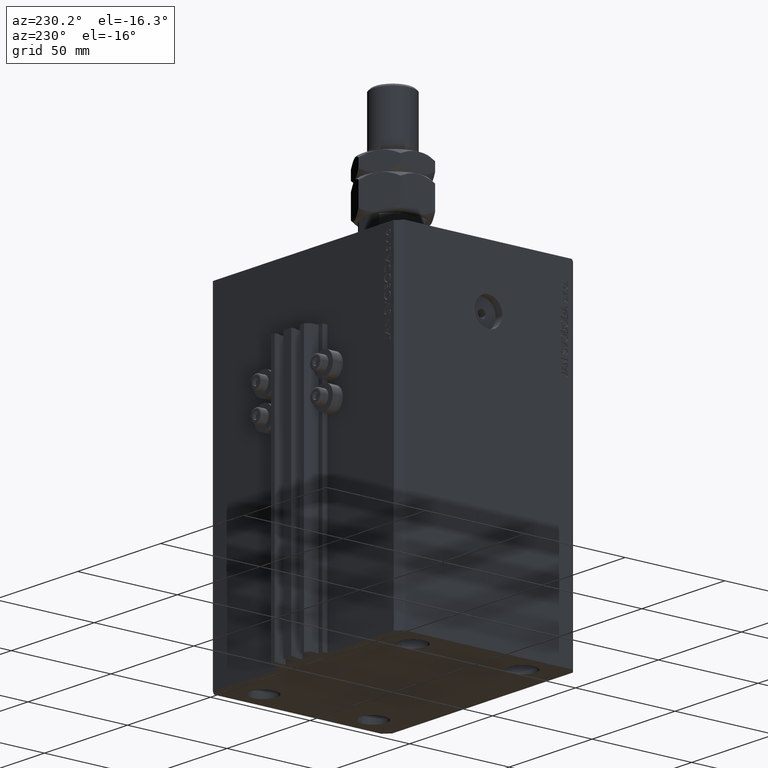
[diagram: clean part render]
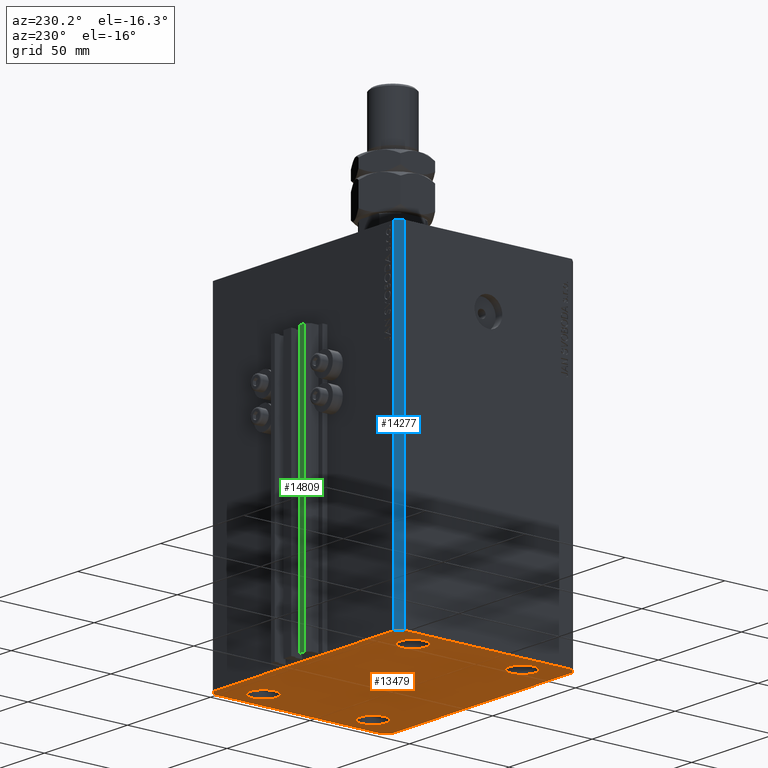
[diagram: same view with three faces highlighted in distinct colors, each labeled with its STEP entity id]
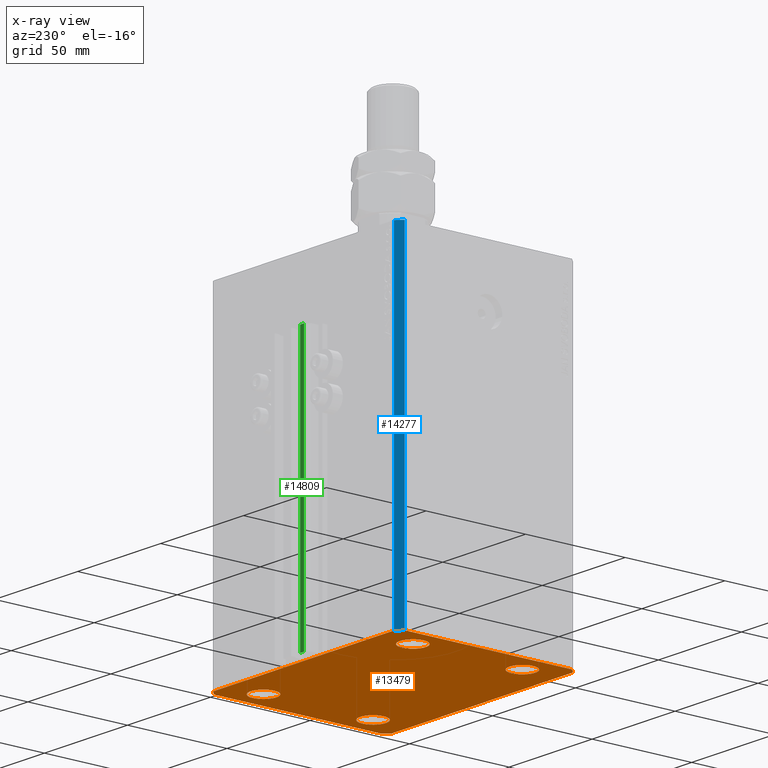
[diagram: x-ray of the same camera — body ghosted, the three highlighted faces saturated]
A machine part, auxiliary view with three faces highlighted in distinct colors.
The next image is the same camera in x-ray (body ghosted, the three faces saturated) — at least one of them is partly hidden behind the body in this view.
Their STEP definitions:

[orange] entity #13479 — the highlighted planar face has unit normal (0, 0, 1).
#1111 = VERTEX_POINT ( 'NONE', #4283 ) ;
#1266 = CARTESIAN_POINT ( 'NONE',  ( 51.50000000000000000, 27.49999999999999289, -165.0000000000000000 ) ) ;
#1566 = DIRECTION ( 'NONE',  ( -0.000000000000000000, -0.000000000000000000, -1.000000000000000000 ) ) ;
#1625 = AXIS2_PLACEMENT_3D ( 'NONE', #45103, #37925, #38415 ) ;
#1873 = DIRECTION ( 'NONE',  ( -0.7071067811865483499, -0.7071067811865466846, 0.000000000000000000 ) ) ;
#2516 = FACE_BOUND ( 'NONE', #38768, .T. ) ;
#3083 = CARTESIAN_POINT ( 'NONE',  ( -45.00000000000000000, 27.49999999999999645, -165.0000000000000000 ) ) ;
#3249 = CARTESIAN_POINT ( 'NONE',  ( 54.50000000000059686, 45.00000000000002842, -165.0000000000000000 ) ) ;
#3682 = EDGE_CURVE ( 'NONE', #43658, #37473, #39765, .T. ) ;
#3860 = ORIENTED_EDGE ( 'NONE', *, *, #47393, .F. ) ;
#4283 = CARTESIAN_POINT ( 'NONE',  ( -54.50000000000000711, -45.00000000000000000, -165.0000000000000000 ) ) ;
#4331 = EDGE_CURVE ( 'NONE', #35072, #5587, #46576, .T. ) ;
#4952 = LINE ( 'NONE', #20014, #23770 ) ;
#5294 = DIRECTION ( 'NONE',  ( -0.000000000000000000, -0.000000000000000000, -1.000000000000000000 ) ) ;
#5587 = VERTEX_POINT ( 'NONE', #43053 ) ;
#5863 = DIRECTION ( 'NONE',  ( -0.000000000000000000, -0.000000000000000000, -1.000000000000000000 ) ) ;
#6213 = CARTESIAN_POINT ( 'NONE',  ( -45.00000000000000000, 27.49999999999999645, -165.0000000000000000 ) ) ;
#6342 = VECTOR ( 'NONE', #1873, 1000.000000000000000 ) ;
#6441 = VECTOR ( 'NONE', #34581, 1000.000000000000000 ) ;
#6456 = FACE_BOUND ( 'NONE', #38337, .T. ) ;
#6558 = ORIENTED_EDGE ( 'NONE', *, *, #16992, .F. ) ;
#6874 = DIRECTION ( 'NONE',  ( 1.000000000000000000, 0.000000000000000000, 0.000000000000000000 ) ) ;
#6934 = CARTESIAN_POINT ( 'NONE',  ( 51.49999999999998579, -27.50000000000000355, -165.0000000000000000 ) ) ;
#7063 = ORIENTED_EDGE ( 'NONE', *, *, #12465, .F. ) ;
#7170 = DIRECTION ( 'NONE',  ( 0.000000000000000000, 0.000000000000000000, 1.000000000000000000 ) ) ;
#7235 = DIRECTION ( 'NONE',  ( -0.000000000000000000, -0.000000000000000000, -1.000000000000000000 ) ) ;
#7317 = VERTEX_POINT ( 'NONE', #6934 ) ;
#7358 = DIRECTION ( 'NONE',  ( -0.000000000000000000, -0.000000000000000000, -1.000000000000000000 ) ) ;
#7641 = DIRECTION ( 'NONE',  ( 1.000000000000000000, 0.000000000000000000, 0.000000000000000000 ) ) ;
#7715 = CARTESIAN_POINT ( 'NONE',  ( -44.99999999999998579, -27.50000000000000355, -165.0000000000000000 ) ) ;
#8208 = EDGE_LOOP ( 'NONE', ( #30553, #3860 ) ) ;
#8223 = DIRECTION ( 'NONE',  ( 1.000000000000000000, 0.000000000000000000, 0.000000000000000000 ) ) ;
#8304 = AXIS2_PLACEMENT_3D ( 'NONE', #7715, #7235, #37846 ) ;
#8418 = AXIS2_PLACEMENT_3D ( 'NONE', #22182, #7358, #6874 ) ;
#9101 = CIRCLE ( 'NONE', #23257, 6.499999999999999112 ) ;
#9285 = DIRECTION ( 'NONE',  ( 0.7071067811865483499, 0.7071067811865466846, 0.000000000000000000 ) ) ;
#9616 = EDGE_CURVE ( 'NONE', #38233, #7317, #48153, .T. ) ;
#9736 = EDGE_CURVE ( 'NONE', #46957, #32797, #35437, .T. ) ;
#10232 = VECTOR ( 'NONE', #9285, 1000.000000000000000 ) ;
#10267 = VERTEX_POINT ( 'NONE', #1266 ) ;
#11126 = VECTOR ( 'NONE', #47943, 1000.000000000000000 ) ;
#11453 = VECTOR ( 'NONE', #36778, 1000.000000000000000 ) ;
#11755 = ORIENTED_EDGE ( 'NONE', *, *, #29634, .F. ) ;
#12198 = VERTEX_POINT ( 'NONE', #28968 ) ;
#12239 = CARTESIAN_POINT ( 'NONE',  ( 57.50000000000055422, 41.99999999999997868, -165.0000000000000000 ) ) ;
#12465 = EDGE_CURVE ( 'NONE', #1111, #35072, #29630, .T. ) ;
#13479 = ADVANCED_FACE ( 'NONE', ( #25472, #29639, #6456, #2516, #44722 ), #22240, .F. ) ;
#13512 = ORIENTED_EDGE ( 'NONE', *, *, #38604, .F. ) ;
#14609 = DIRECTION ( 'NONE',  ( -1.000000000000000000, -2.546383084002638829E-16, 0.000000000000000000 ) ) ;
#16146 = ORIENTED_EDGE ( 'NONE', *, *, #27701, .F. ) ;
#16443 = ORIENTED_EDGE ( 'NONE', *, *, #40694, .F. ) ;
#16690 = ORIENTED_EDGE ( 'NONE', *, *, #35925, .F. ) ;
#16864 = AXIS2_PLACEMENT_3D ( 'NONE', #35375, #1566, #8223 ) ;
#16892 = DIRECTION ( 'NONE',  ( 1.000000000000000000, 0.000000000000000000, 0.000000000000000000 ) ) ;
#16992 = EDGE_CURVE ( 'NONE', #32797, #26281, #40735, .T. ) ;
#17227 = EDGE_CURVE ( 'NONE', #29457, #10267, #9101, .T. ) ;
#18070 = CARTESIAN_POINT ( 'NONE',  ( 38.49999999999998579, -27.50000000000000355, -165.0000000000000000 ) ) ;
#18091 = VERTEX_POINT ( 'NONE', #34441 ) ;
#18400 = EDGE_CURVE ( 'NONE', #12198, #18091, #21765, .T. ) ;
#18490 = CARTESIAN_POINT ( 'NONE',  ( -57.49999999999998579, 42.00000000000000711, -165.0000000000000000 ) ) ;
#19525 = LINE ( 'NONE', #30873, #6441 ) ;
#19552 = CARTESIAN_POINT ( 'NONE',  ( -54.49999999999999289, 45.00000000000000000, -165.0000000000000000 ) ) ;
#20014 = CARTESIAN_POINT ( 'NONE',  ( -57.50000000000000711, -42.00000000000000711, -165.0000000000000000 ) ) ;
#20397 = CARTESIAN_POINT ( 'NONE',  ( 54.50000000000000711, -44.99999999999998579, -165.0000000000000000 ) ) ;
#21493 = CIRCLE ( 'NONE', #44369, 6.499999999999999112 ) ;
#21683 = ORIENTED_EDGE ( 'NONE', *, *, #9736, .F. ) ;
#21765 = CIRCLE ( 'NONE', #8304, 6.499999999999999112 ) ;
#22182 = CARTESIAN_POINT ( 'NONE',  ( -44.99999999999998579, -27.50000000000000355, -165.0000000000000000 ) ) ;
#22240 = PLANE ( 'NONE',  #32488 ) ;
#22391 = CIRCLE ( 'NONE', #28698, 6.499999999999999112 ) ;
#22395 = ORIENTED_EDGE ( 'NONE', *, *, #9616, .F. ) ;
#23257 = AXIS2_PLACEMENT_3D ( 'NONE', #31710, #5294, #16892 ) ;
#23770 = VECTOR ( 'NONE', #35069, 1000.000000000000114 ) ;
#24175 = ORIENTED_EDGE ( 'NONE', *, *, #38728, .F. ) ;
#24868 = CARTESIAN_POINT ( 'NONE',  ( -51.50000000000000000, 27.49999999999999645, -165.0000000000000000 ) ) ;
#25179 = VECTOR ( 'NONE', #27660, 1000.000000000000000 ) ;
#25472 = FACE_BOUND ( 'NONE', #8208, .T. ) ;
#25699 = CARTESIAN_POINT ( 'NONE',  ( 45.00000000000000000, 27.49999999999999289, -165.0000000000000000 ) ) ;
#26281 = VERTEX_POINT ( 'NONE', #38628 ) ;
#27075 = VERTEX_POINT ( 'NONE', #24868 ) ;
#27660 = DIRECTION ( 'NONE',  ( -0.7071067811865369146, 0.7071067811865581199, 0.000000000000000000 ) ) ;
#27699 = ORIENTED_EDGE ( 'NONE', *, *, #30226, .F. ) ;
#27701 = EDGE_CURVE ( 'NONE', #37473, #46957, #37796, .T. ) ;
#28597 = ORIENTED_EDGE ( 'NONE', *, *, #17227, .F. ) ;
#28698 = AXIS2_PLACEMENT_3D ( 'NONE', #25699, #41476, #7641 ) ;
#28968 = CARTESIAN_POINT ( 'NONE',  ( -38.49999999999998579, -27.50000000000000355, -165.0000000000000000 ) ) ;
#29161 = DIRECTION ( 'NONE',  ( -0.000000000000000000, -0.000000000000000000, -1.000000000000000000 ) ) ;
#29457 = VERTEX_POINT ( 'NONE', #32650 ) ;
#29628 = CARTESIAN_POINT ( 'NONE',  ( -57.49999999999998579, 42.00000000000000711, -165.0000000000000000 ) ) ;
#29630 = LINE ( 'NONE', #36812, #11126 ) ;
#29634 = EDGE_CURVE ( 'NONE', #26281, #1111, #4952, .T. ) ;
#29639 = FACE_BOUND ( 'NONE', #46018, .T. ) ;
#30226 = EDGE_CURVE ( 'NONE', #5587, #43658, #19525, .T. ) ;
#30553 = ORIENTED_EDGE ( 'NONE', *, *, #18400, .F. ) ;
#30873 = CARTESIAN_POINT ( 'NONE',  ( 57.50000000000000711, -41.99999999999998579, -165.0000000000000000 ) ) ;
#31710 = CARTESIAN_POINT ( 'NONE',  ( 45.00000000000000000, 27.49999999999999289, -165.0000000000000000 ) ) ;
#32488 = AXIS2_PLACEMENT_3D ( 'NONE', #47707, #7170, #40537 ) ;
#32631 = DIRECTION ( 'NONE',  ( 1.000000000000000000, 0.000000000000000000, 0.000000000000000000 ) ) ;
#32650 = CARTESIAN_POINT ( 'NONE',  ( 38.50000000000000000, 27.49999999999999289, -165.0000000000000000 ) ) ;
#32797 = VERTEX_POINT ( 'NONE', #29628 ) ;
#34437 = CIRCLE ( 'NONE', #8418, 6.499999999999999112 ) ;
#34441 = CARTESIAN_POINT ( 'NONE',  ( -51.49999999999998579, -27.50000000000000355, -165.0000000000000000 ) ) ;
#34581 = DIRECTION ( 'NONE',  ( 6.443258625056715108E-15, 1.000000000000000000, 0.000000000000000000 ) ) ;
#34766 = VECTOR ( 'NONE', #14609, 1000.000000000000000 ) ;
#35069 = DIRECTION ( 'NONE',  ( 0.7071067811865491270, -0.7071067811865459074, 0.000000000000000000 ) ) ;
#35072 = VERTEX_POINT ( 'NONE', #46406 ) ;
#35320 = CARTESIAN_POINT ( 'NONE',  ( 57.50000000000055422, 41.99999999999997868, -165.0000000000000000 ) ) ;
#35375 = CARTESIAN_POINT ( 'NONE',  ( 44.99999999999998579, -27.50000000000000355, -165.0000000000000000 ) ) ;
#35437 = LINE ( 'NONE', #46322, #6342 ) ;
#35925 = EDGE_CURVE ( 'NONE', #27075, #36777, #21493, .T. ) ;
#36777 = VERTEX_POINT ( 'NONE', #41913 ) ;
#36778 = DIRECTION ( 'NONE',  ( -2.478176394252581141E-16, -1.000000000000000000, 0.000000000000000000 ) ) ;
#36812 = CARTESIAN_POINT ( 'NONE',  ( -54.50000000000000711, -45.00000000000000000, -165.0000000000000000 ) ) ;
#36831 = CARTESIAN_POINT ( 'NONE',  ( 54.50000000000059686, 45.00000000000002842, -165.0000000000000000 ) ) ;
#37473 = VERTEX_POINT ( 'NONE', #36831 ) ;
#37796 = LINE ( 'NONE', #3249, #34766 ) ;
#37846 = DIRECTION ( 'NONE',  ( 1.000000000000000000, 0.000000000000000000, 0.000000000000000000 ) ) ;
#37925 = DIRECTION ( 'NONE',  ( -0.000000000000000000, -0.000000000000000000, -1.000000000000000000 ) ) ;
#38233 = VERTEX_POINT ( 'NONE', #18070 ) ;
#38337 = EDGE_LOOP ( 'NONE', ( #16443, #28597 ) ) ;
#38415 = DIRECTION ( 'NONE',  ( 1.000000000000000000, 0.000000000000000000, 0.000000000000000000 ) ) ;
#38604 = EDGE_CURVE ( 'NONE', #36777, #27075, #43616, .T. ) ;
#38628 = CARTESIAN_POINT ( 'NONE',  ( -57.50000000000000711, -42.00000000000000711, -165.0000000000000000 ) ) ;
#38728 = EDGE_CURVE ( 'NONE', #7317, #38233, #48420, .T. ) ;
#38768 = EDGE_LOOP ( 'NONE', ( #13512, #16690 ) ) ;
#39765 = LINE ( 'NONE', #35320, #25179 ) ;
#40537 = DIRECTION ( 'NONE',  ( 1.000000000000000000, 0.000000000000000000, -0.000000000000000000 ) ) ;
#40694 = EDGE_CURVE ( 'NONE', #10267, #29457, #22391, .T. ) ;
#40735 = LINE ( 'NONE', #18490, #11453 ) ;
#40858 = DIRECTION ( 'NONE',  ( 1.000000000000000000, 0.000000000000000000, 0.000000000000000000 ) ) ;
#41476 = DIRECTION ( 'NONE',  ( -0.000000000000000000, -0.000000000000000000, -1.000000000000000000 ) ) ;
#41913 = CARTESIAN_POINT ( 'NONE',  ( -38.50000000000000000, 27.49999999999999645, -165.0000000000000000 ) ) ;
#43053 = CARTESIAN_POINT ( 'NONE',  ( 57.50000000000000711, -41.99999999999998579, -165.0000000000000000 ) ) ;
#43616 = CIRCLE ( 'NONE', #46797, 6.499999999999999112 ) ;
#43658 = VERTEX_POINT ( 'NONE', #12239 ) ;
#44369 = AXIS2_PLACEMENT_3D ( 'NONE', #6213, #29161, #32631 ) ;
#44722 = FACE_OUTER_BOUND ( 'NONE', #48226, .T. ) ;
#45103 = CARTESIAN_POINT ( 'NONE',  ( 44.99999999999998579, -27.50000000000000355, -165.0000000000000000 ) ) ;
#45155 = ORIENTED_EDGE ( 'NONE', *, *, #3682, .F. ) ;
#46018 = EDGE_LOOP ( 'NONE', ( #24175, #22395 ) ) ;
#46322 = CARTESIAN_POINT ( 'NONE',  ( -54.49999999999999289, 45.00000000000000000, -165.0000000000000000 ) ) ;
#46406 = CARTESIAN_POINT ( 'NONE',  ( 54.50000000000000711, -44.99999999999998579, -165.0000000000000000 ) ) ;
#46576 = LINE ( 'NONE', #20397, #10232 ) ;
#46797 = AXIS2_PLACEMENT_3D ( 'NONE', #3083, #5863, #40858 ) ;
#46957 = VERTEX_POINT ( 'NONE', #19552 ) ;
#47321 = ORIENTED_EDGE ( 'NONE', *, *, #4331, .F. ) ;
#47393 = EDGE_CURVE ( 'NONE', #18091, #12198, #34437, .T. ) ;
#47707 = CARTESIAN_POINT ( 'NONE',  ( 0.000000000000000000, 0.000000000000000000, -165.0000000000000000 ) ) ;
#47943 = DIRECTION ( 'NONE',  ( 1.000000000000000000, 1.273191542001326317E-16, 0.000000000000000000 ) ) ;
#48153 = CIRCLE ( 'NONE', #1625, 6.499999999999999112 ) ;
#48226 = EDGE_LOOP ( 'NONE', ( #16146, #45155, #27699, #47321, #7063, #11755, #6558, #21683 ) ) ;
#48420 = CIRCLE ( 'NONE', #16864, 6.499999999999999112 ) ;

[blue] entity #14277 — the highlighted planar face has unit normal (-0.7071, 0.7071, 0).
#1873 = DIRECTION ( 'NONE',  ( -0.7071067811865483499, -0.7071067811865466846, 0.000000000000000000 ) ) ;
#1965 = LINE ( 'NONE', #28850, #16509 ) ;
#3476 = DIRECTION ( 'NONE',  ( -0.7071067811865483499, -0.7071067811865466846, 0.000000000000000000 ) ) ;
#5775 = PLANE ( 'NONE',  #11229 ) ;
#6342 = VECTOR ( 'NONE', #1873, 1000.000000000000000 ) ;
#7604 = EDGE_CURVE ( 'NONE', #46957, #35372, #1965, .T. ) ;
#8564 = CARTESIAN_POINT ( 'NONE',  ( -54.49999999999999289, 45.00000000000000000, 0.000000000000000000 ) ) ;
#9677 = LINE ( 'NONE', #39800, #43551 ) ;
#9736 = EDGE_CURVE ( 'NONE', #46957, #32797, #35437, .T. ) ;
#10501 = VERTEX_POINT ( 'NONE', #33803 ) ;
#11229 = AXIS2_PLACEMENT_3D ( 'NONE', #13687, #28972, #32690 ) ;
#13687 = CARTESIAN_POINT ( 'NONE',  ( -54.49999999999999289, 45.00000000000000000, -165.0000000000000000 ) ) ;
#13933 = FACE_OUTER_BOUND ( 'NONE', #46442, .T. ) ;
#14277 = ADVANCED_FACE ( 'NONE', ( #13933 ), #5775, .T. ) ;
#16509 = VECTOR ( 'NONE', #32078, 1000.000000000000000 ) ;
#16708 = ORIENTED_EDGE ( 'NONE', *, *, #35821, .F. ) ;
#19552 = CARTESIAN_POINT ( 'NONE',  ( -54.49999999999999289, 45.00000000000000000, -165.0000000000000000 ) ) ;
#22785 = LINE ( 'NONE', #37363, #33192 ) ;
#24855 = ORIENTED_EDGE ( 'NONE', *, *, #27405, .T. ) ;
#25535 = ORIENTED_EDGE ( 'NONE', *, *, #7604, .F. ) ;
#27405 = EDGE_CURVE ( 'NONE', #32797, #10501, #22785, .T. ) ;
#28850 = CARTESIAN_POINT ( 'NONE',  ( -54.49999999999999289, 45.00000000000000000, -165.0000000000000000 ) ) ;
#28972 = DIRECTION ( 'NONE',  ( -0.7071067811865466846, 0.7071067811865483499, 0.000000000000000000 ) ) ;
#29628 = CARTESIAN_POINT ( 'NONE',  ( -57.49999999999998579, 42.00000000000000711, -165.0000000000000000 ) ) ;
#32078 = DIRECTION ( 'NONE',  ( 0.000000000000000000, 0.000000000000000000, 1.000000000000000000 ) ) ;
#32690 = DIRECTION ( 'NONE',  ( -0.7071067811865483499, -0.7071067811865466846, 0.000000000000000000 ) ) ;
#32797 = VERTEX_POINT ( 'NONE', #29628 ) ;
#33192 = VECTOR ( 'NONE', #33905, 1000.000000000000000 ) ;
#33803 = CARTESIAN_POINT ( 'NONE',  ( -57.49999999999998579, 42.00000000000000711, 0.000000000000000000 ) ) ;
#33905 = DIRECTION ( 'NONE',  ( 0.000000000000000000, 0.000000000000000000, 1.000000000000000000 ) ) ;
#34986 = ORIENTED_EDGE ( 'NONE', *, *, #9736, .T. ) ;
#35372 = VERTEX_POINT ( 'NONE', #8564 ) ;
#35437 = LINE ( 'NONE', #46322, #6342 ) ;
#35821 = EDGE_CURVE ( 'NONE', #35372, #10501, #9677, .T. ) ;
#37363 = CARTESIAN_POINT ( 'NONE',  ( -57.49999999999998579, 42.00000000000000711, -165.0000000000000000 ) ) ;
#39800 = CARTESIAN_POINT ( 'NONE',  ( -54.49999999999999289, 45.00000000000000000, 0.000000000000000000 ) ) ;
#43551 = VECTOR ( 'NONE', #3476, 1000.000000000000000 ) ;
#46322 = CARTESIAN_POINT ( 'NONE',  ( -54.49999999999999289, 45.00000000000000000, -165.0000000000000000 ) ) ;
#46442 = EDGE_LOOP ( 'NONE', ( #16708, #25535, #34986, #24855 ) ) ;
#46957 = VERTEX_POINT ( 'NONE', #19552 ) ;

[green] entity #14809 — the highlighted planar face has unit normal (0, 1, 0).
#411 = DIRECTION ( 'NONE',  ( -1.000000000000000000, 0.000000000000000000, 0.000000000000000000 ) ) ;
#1131 = LINE ( 'NONE', #46566, #23172 ) ;
#1837 = VERTEX_POINT ( 'NONE', #12549 ) ;
#2636 = VECTOR ( 'NONE', #22251, 1000.000000000000000 ) ;
#3474 = PLANE ( 'NONE',  #47561 ) ;
#3608 = CARTESIAN_POINT ( 'NONE',  ( -7.650000000000002132, 52.99999999999999289, -165.0000000000000000 ) ) ;
#4142 = EDGE_LOOP ( 'NONE', ( #27081, #5638, #7716, #43627 ) ) ;
#5638 = ORIENTED_EDGE ( 'NONE', *, *, #16358, .F. ) ;
#6600 = VERTEX_POINT ( 'NONE', #17247 ) ;
#7185 = LINE ( 'NONE', #44733, #2636 ) ;
#7413 = CARTESIAN_POINT ( 'NONE',  ( -7.650000000000002132, 52.99999999999999289, -165.0000000000000000 ) ) ;
#7716 = ORIENTED_EDGE ( 'NONE', *, *, #37455, .T. ) ;
#11701 = VERTEX_POINT ( 'NONE', #15537 ) ;
#12549 = CARTESIAN_POINT ( 'NONE',  ( -10.00000000000000000, 52.99999999999999289, -165.0000000000000000 ) ) ;
#13407 = LINE ( 'NONE', #21067, #46188 ) ;
#14351 = FACE_OUTER_BOUND ( 'NONE', #4142, .T. ) ;
#14809 = ADVANCED_FACE ( 'NONE', ( #14351 ), #3474, .T. ) ;
#15537 = CARTESIAN_POINT ( 'NONE',  ( -7.650000000000002132, 52.99999999999999289, -165.0000000000000000 ) ) ;
#16358 = EDGE_CURVE ( 'NONE', #11701, #20660, #26076, .T. ) ;
#16598 = CARTESIAN_POINT ( 'NONE',  ( -7.650000000000002132, 52.99999999999999289, -33.00000000000000000 ) ) ;
#16866 = DIRECTION ( 'NONE',  ( 0.000000000000000000, 0.000000000000000000, 1.000000000000000000 ) ) ;
#17247 = CARTESIAN_POINT ( 'NONE',  ( -10.00000000000000000, 52.99999999999999289, -33.00000000000000000 ) ) ;
#20660 = VERTEX_POINT ( 'NONE', #16598 ) ;
#21067 = CARTESIAN_POINT ( 'NONE',  ( -10.00000000000000000, 52.99999999999999289, -165.0000000000000000 ) ) ;
#22251 = DIRECTION ( 'NONE',  ( -1.000000000000000000, 0.000000000000000000, 0.000000000000000000 ) ) ;
#22476 = DIRECTION ( 'NONE',  ( 0.000000000000000000, 1.000000000000000000, -0.000000000000000000 ) ) ;
#23172 = VECTOR ( 'NONE', #411, 1000.000000000000000 ) ;
#24980 = EDGE_CURVE ( 'NONE', #20660, #6600, #1131, .T. ) ;
#25362 = DIRECTION ( 'NONE',  ( 0.000000000000000000, 0.000000000000000000, 1.000000000000000000 ) ) ;
#26076 = LINE ( 'NONE', #3608, #45300 ) ;
#27081 = ORIENTED_EDGE ( 'NONE', *, *, #24980, .F. ) ;
#32882 = DIRECTION ( 'NONE',  ( 0.000000000000000000, 0.000000000000000000, 1.000000000000000000 ) ) ;
#37455 = EDGE_CURVE ( 'NONE', #11701, #1837, #7185, .T. ) ;
#43627 = ORIENTED_EDGE ( 'NONE', *, *, #44430, .T. ) ;
#44430 = EDGE_CURVE ( 'NONE', #1837, #6600, #13407, .T. ) ;
#44733 = CARTESIAN_POINT ( 'NONE',  ( -7.650000000000002132, 52.99999999999999289, -165.0000000000000000 ) ) ;
#45300 = VECTOR ( 'NONE', #25362, 1000.000000000000000 ) ;
#46188 = VECTOR ( 'NONE', #16866, 1000.000000000000000 ) ;
#46566 = CARTESIAN_POINT ( 'NONE',  ( -7.650000000000002132, 52.99999999999999289, -33.00000000000000000 ) ) ;
#47561 = AXIS2_PLACEMENT_3D ( 'NONE', #7413, #22476, #32882 ) ;